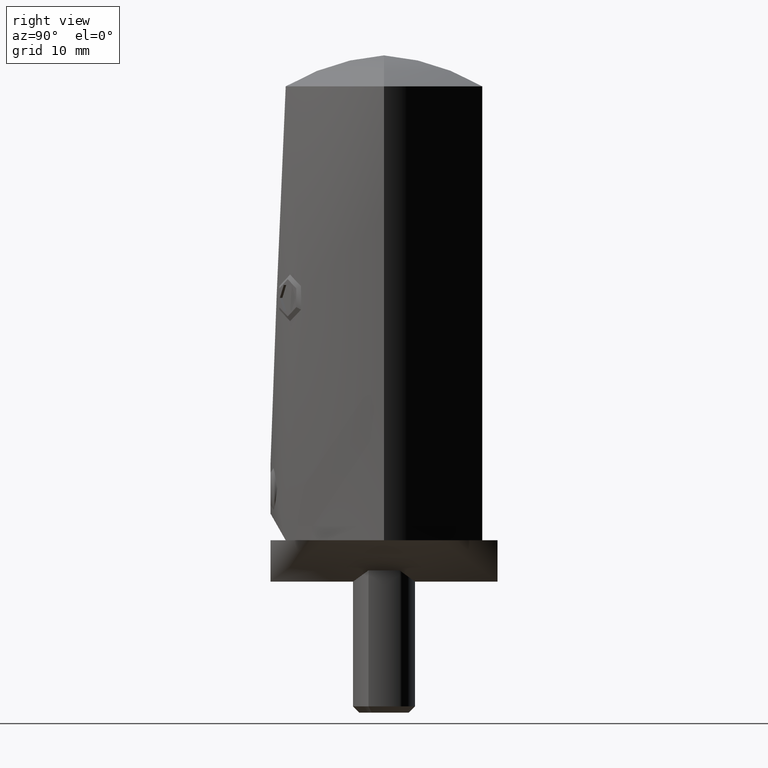
[diagram: clean part render]
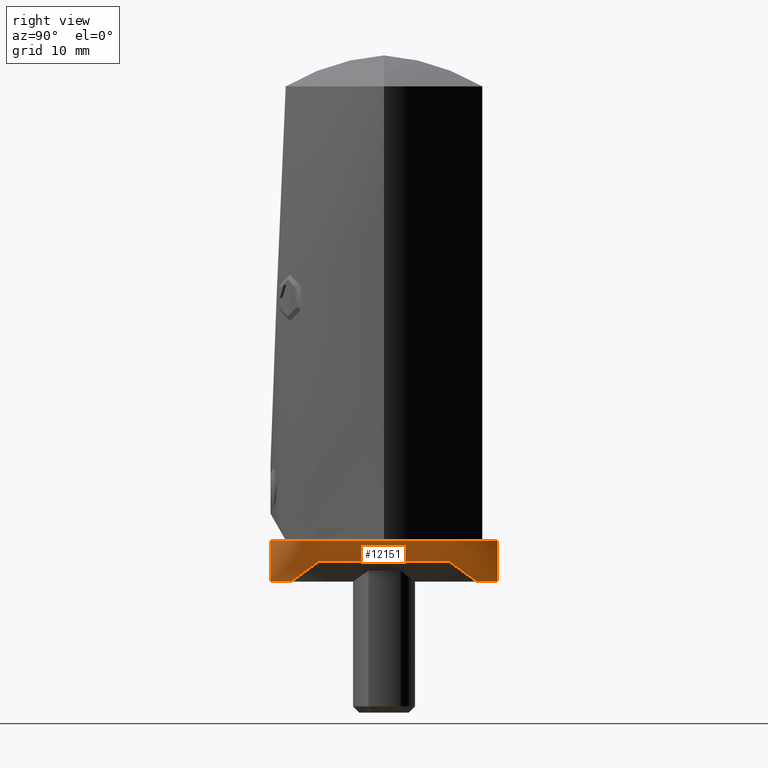
[diagram: same view with one face highlighted and labeled with its STEP entity id]
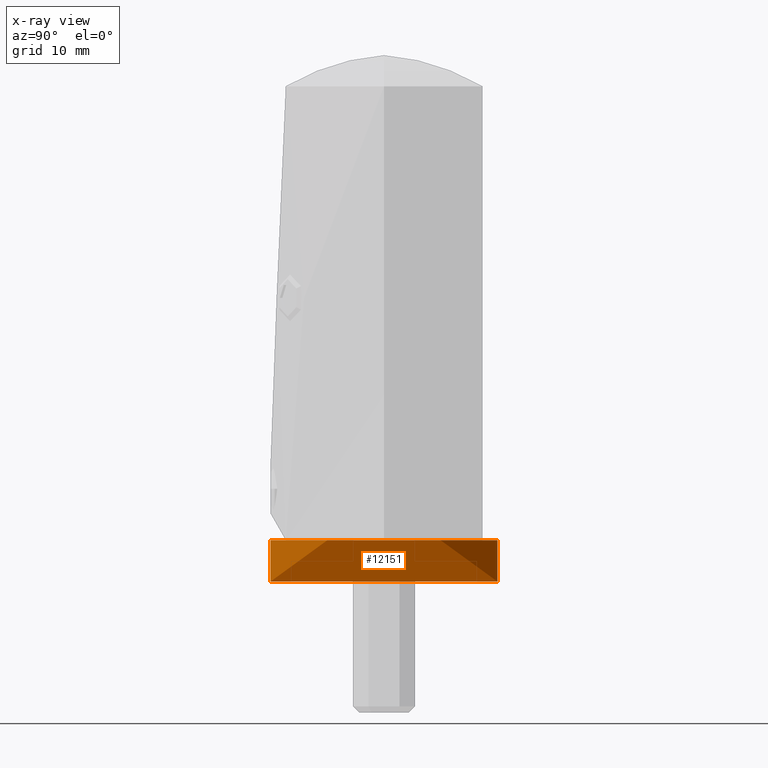
[diagram: x-ray of the same camera — body ghosted, the highlighted face saturated]
A machine part, right view. The second image highlights one B-rep face of the part: STEP entity #12151.
The next image is the same camera in x-ray: the body ghosted, the highlighted face saturated — about 0% of this face is hidden behind the body in this view.
In plain terms, the highlighted cylindrical surface (partial cylindrical patch) has radius 11 mm, axis along (0, 0, -1).
Its self-contained STEP definition (entity closure, byte-faithful):
#45 = AXIS2_PLACEMENT_3D ( 'NONE', #18418, #7513, #16544 ) ;
#507 = CARTESIAN_POINT ( 'NONE',  ( 0.000000000000000000, 11.00000000000000000, -3.469446951953614189E-15 ) ) ;
#513 = VECTOR ( 'NONE', #21849, 1000.000000000000000 ) ;
#676 = CARTESIAN_POINT ( 'NONE',  ( 2.552064494333429856, -10.70615899485356337, -0.1510597987303608503 ) ) ;
#733 = ORIENTED_EDGE ( 'NONE', *, *, #11582, .T. ) ;
#752 = CARTESIAN_POINT ( 'NONE',  ( 9.864297932310677197, 4.919862878017696950, -2.432080945133793914 ) ) ;
#835 = CARTESIAN_POINT ( 'NONE',  ( 8.270404237882667431, 7.261240364331859709, -1.678201803686915294 ) ) ;
#1369 = B_SPLINE_CURVE_WITH_KNOTS ( 'NONE', 3,
 ( #507, #16882, #4232, #11485, #13130, #22033, #2757, #4401, #18745, #4485, #4568, #16799, #9829, #11649, #835, #18517, #9529, #20236, #752, #13443, #2525, #13291, #18587, #6208, #16956, #6132, #2440, #20459, #16715, #6057, #8087, #9753, #2680, #20315, #9606, #22111, #17029, #20387, #18669, #15164, #7766, #9679, #11321, #11404, #2602, #8002, #676, #22266, #11568, #20540 ),
 .UNSPECIFIED., .F., .F.,
 ( 4, 2, 2, 2, 2, 2, 2, 2, 2, 2, 2, 2, 2, 2, 2, 2, 2, 2, 2, 2, 2, 2, 2, 2, 4 ),
 ( 0.03502517216169599018, 0.03721196855258311620, 0.03830536674802667574, 0.03939876494347024222, 0.04158556133435736130, 0.04267895952980092777, 0.04377235772524448731, 0.04486575592068804685, 0.04595915411613160639, 0.04814595050701871853, 0.04923934870246227807, 0.05033274689790583761, 0.05251954328879295669, 0.05361294148423651623, 0.05470633967968006883, 0.05579973787512362837, 0.05689313607056718791, 0.05907993246145431393, 0.06017333065689787347, 0.06126672885234142607, 0.06345352524322854515, 0.06564032163411565035, 0.06673371982955920989, 0.06782711802500276943, 0.07001391441588987463 ),
 .UNSPECIFIED. ) ;
#1452 = CARTESIAN_POINT ( 'NONE',  ( 1.347111479062088799E-15, -11.00000000000000178, 3.999999999999994671 ) ) ;
#1494 = LINE ( 'NONE', #1701, #14574 ) ;
#1701 = CARTESIAN_POINT ( 'NONE',  ( 0.000000000000000000, 11.00000000000000000, 1.999999999999999556 ) ) ;
#2030 = CARTESIAN_POINT ( 'NONE',  ( 0.000000000000000000, 11.00000000000000178, 3.999999999999998224 ) ) ;
#2440 = CARTESIAN_POINT ( 'NONE',  ( 10.98274293922297851, -0.7174293107113660639, -3.066573732303058630 ) ) ;
#2525 = CARTESIAN_POINT ( 'NONE',  ( 10.40232475824445579, 3.594992271804330120, -2.727129868824431203 ) ) ;
#2602 = CARTESIAN_POINT ( 'NONE',  ( 3.602820818996964380, -10.39958567651496324, -0.3054374273882594637 ) ) ;
#2680 = CARTESIAN_POINT ( 'NONE',  ( 10.28754891350618017, -3.911047893282803667, -2.662701681341379079 ) ) ;
#2757 = CARTESIAN_POINT ( 'NONE',  ( 3.929596504971303972, 10.28046273033147529, -0.3646191335785084475 ) ) ;
#2787 = AXIS2_PLACEMENT_3D ( 'NONE', #19562, #3260, #23072 ) ;
#3260 = DIRECTION ( 'NONE',  ( -0.000000000000000000, 1.224646799147353700E-16, -1.000000000000000000 ) ) ;
#3488 = DIRECTION ( 'NONE',  ( -0.000000000000000000, 1.224646799147353700E-16, -1.000000000000000000 ) ) ;
#4232 = CARTESIAN_POINT ( 'NONE',  ( 1.467299718637823158, 10.92589961751966854, -0.03871547189467094280 ) ) ;
#4401 = CARTESIAN_POINT ( 'NONE',  ( 4.925419289156148572, 9.861988409670592759, -0.5689665070091417531 ) ) ;
#4485 = CARTESIAN_POINT ( 'NONE',  ( 6.442175338900206327, 8.923348977481351696, -1.000140224583368376 ) ) ;
#4568 = CARTESIAN_POINT ( 'NONE',  ( 6.729267827708224736, 8.708754479614697175, -1.094261902260203367 ) ) ;
#4733 = EDGE_CURVE ( 'NONE', #8340, #15429, #1494, .T. ) ;
#5587 = VERTEX_POINT ( 'NONE', #1452 ) ;
#6057 = CARTESIAN_POINT ( 'NONE',  ( 10.71292069468791652, -2.522954243024979615, -2.905732086509019485 ) ) ;
#6132 = CARTESIAN_POINT ( 'NONE',  ( 11.00067371623885570, -0.3456549981569164154, -3.077495249088782359 ) ) ;
#6208 = CARTESIAN_POINT ( 'NONE',  ( 10.92471211156022193, 1.476027313982266831, -3.030827097976156015 ) ) ;
#6212 = VERTEX_POINT ( 'NONE', #15802 ) ;
#6954 = EDGE_CURVE ( 'NONE', #8340, #5587, #15910, .T. ) ;
#7513 = DIRECTION ( 'NONE',  ( -0.000000000000000000, 1.224646799147353700E-16, -1.000000000000000000 ) ) ;
#7766 = CARTESIAN_POINT ( 'NONE',  ( 6.748102684486553926, -8.716583714318458576, -1.093034215487775462 ) ) ;
#8002 = CARTESIAN_POINT ( 'NONE',  ( 2.909539390763706379, -10.61443736759360945, -0.1976752837172887356 ) ) ;
#8087 = CARTESIAN_POINT ( 'NONE',  ( 10.62402915502530476, -2.874267179972429975, -2.853748354570514678 ) ) ;
#8340 = VERTEX_POINT ( 'NONE', #2030 ) ;
#9529 = CARTESIAN_POINT ( 'NONE',  ( 8.933765440907340150, 6.427605682767928208, -1.973039072528823379 ) ) ;
#9606 = CARTESIAN_POINT ( 'NONE',  ( 9.532702728941721659, -5.534703615640196084, -2.259038555950334093 ) ) ;
#9679 = CARTESIAN_POINT ( 'NONE',  ( 5.557525793941373138, -9.519959481992170680, -0.7319549064988567499 ) ) ;
#9753 = CARTESIAN_POINT ( 'NONE',  ( 10.41174297898443157, -3.567494281461812022, -2.732445937162654381 ) ) ;
#9829 = CARTESIAN_POINT ( 'NONE',  ( 7.536272219175398135, 8.020506772223102487, -1.382934182049875727 ) ) ;
#11118 = EDGE_CURVE ( 'NONE', #15429, #6212, #1369, .T. ) ;
#11321 = CARTESIAN_POINT ( 'NONE',  ( 4.930220560771870097, -9.859271180693031766, -0.5702541942596116575 ) ) ;
#11404 = CARTESIAN_POINT ( 'NONE',  ( 3.940806586855185145, -10.27609454963675972, -0.3667713701925455760 ) ) ;
#11485 = CARTESIAN_POINT ( 'NONE',  ( 2.535894805954848064, 10.70986929249087716, -0.1491693662918061603 ) ) ;
#11568 = CARTESIAN_POINT ( 'NONE',  ( 0.7402852057931207375, -11.00000000000000355, 9.317362419797211285E-17 ) ) ;
#11582 = EDGE_CURVE ( 'NONE', #5587, #6212, #20881, .T. ) ;
#11631 = CARTESIAN_POINT ( 'NONE',  ( 0.000000000000000000, 11.00000000000000000, -3.469446951953614189E-15 ) ) ;
#11649 = CARTESIAN_POINT ( 'NONE',  ( 8.033687335736813040, 7.522220126825148512, -1.579312846230283229 ) ) ;
#12151 = ADVANCED_FACE ( 'NONE', ( #18907 ), #12230, .T. ) ;
#12230 = CYLINDRICAL_SURFACE ( 'NONE', #2787, 11.00000000000000000 ) ;
#13130 = CARTESIAN_POINT ( 'NONE',  ( 2.888607095253891810, 10.62023836085034567, -0.1947433341766091341 ) ) ;
#13239 = ORIENTED_EDGE ( 'NONE', *, *, #4733, .F. ) ;
#13291 = CARTESIAN_POINT ( 'NONE',  ( 10.61711103650346821, 2.899876385102410303, -2.849734484269164980 ) ) ;
#13443 = CARTESIAN_POINT ( 'NONE',  ( 10.27909791159250297, 3.932874550868092012, -2.658022328760500486 ) ) ;
#14574 = VECTOR ( 'NONE', #3488, 1000.000000000000000 ) ;
#14899 = CARTESIAN_POINT ( 'NONE',  ( 1.347111479062088405E-15, -11.00000000000000000, 1.999999999999997113 ) ) ;
#15164 = CARTESIAN_POINT ( 'NONE',  ( 7.292018243914411890, -8.265747716242641374, -1.286376107099085786 ) ) ;
#15429 = VERTEX_POINT ( 'NONE', #11631 ) ;
#15802 = CARTESIAN_POINT ( 'NONE',  ( 1.347111479062088602E-15, -11.00000000000000000, -3.469446951953614189E-15 ) ) ;
#15910 = CIRCLE ( 'NONE', #45, 11.00000000000000178 ) ;
#16171 = ORIENTED_EDGE ( 'NONE', *, *, #11118, .F. ) ;
#16544 = DIRECTION ( 'NONE',  ( 0.000000000000000000, 1.000000000000000000, 1.577021341797097067E-16 ) ) ;
#16715 = CARTESIAN_POINT ( 'NONE',  ( 10.85603726131801672, -1.810641572466851423, -2.990294805183332016 ) ) ;
#16799 = CARTESIAN_POINT ( 'NONE',  ( 7.275574818717098324, 8.257812127948154668, -1.285438468066033346 ) ) ;
#16882 = CARTESIAN_POINT ( 'NONE',  ( 0.7410559829012656197, 10.99999999999999822, -7.623296525288699970E-18 ) ) ;
#16956 = CARTESIAN_POINT ( 'NONE',  ( 10.99859349490227878, 0.7537502832437135147, -3.076232627687867094 ) ) ;
#17029 = CARTESIAN_POINT ( 'NONE',  ( 8.725234216480592053, -6.707913983110485034, -1.877197688189006231 ) ) ;
#18418 = CARTESIAN_POINT ( 'NONE',  ( 0.000000000000000000, -4.898587196589407898E-16, 3.999999999999996447 ) ) ;
#18517 = CARTESIAN_POINT ( 'NONE',  ( 8.719963951504306365, 6.714717162401944606, -1.874824198470386394 ) ) ;
#18587 = CARTESIAN_POINT ( 'NONE',  ( 10.70789862065493558, 2.544190434656818045, -2.902788414739169820 ) ) ;
#18669 = CARTESIAN_POINT ( 'NONE',  ( 8.038023672227113892, -7.517592985075362222, -1.581089171437418894 ) ) ;
#18745 = CARTESIAN_POINT ( 'NONE',  ( 5.552767705937057485, 9.522493953167325387, -0.7307400481009420634 ) ) ;
#18907 = FACE_OUTER_BOUND ( 'NONE', #20630, .T. ) ;
#19077 = ORIENTED_EDGE ( 'NONE', *, *, #6954, .T. ) ;
#19562 = CARTESIAN_POINT ( 'NONE',  ( 0.000000000000000000, -2.449293598294700991E-16, 1.999999999999998224 ) ) ;
#20236 = CARTESIAN_POINT ( 'NONE',  ( 9.528112198186326154, 5.542580356113598228, -2.256720353186260741 ) ) ;
#20315 = CARTESIAN_POINT ( 'NONE',  ( 9.870325263758303436, -4.908819845232764045, -2.435217944284064462 ) ) ;
#20387 = CARTESIAN_POINT ( 'NONE',  ( 8.274939801116792282, -7.256114209764482403, -1.680118530030333623 ) ) ;
#20459 = CARTESIAN_POINT ( 'NONE',  ( 10.91026507547973523, -1.449642462018545963, -3.022874081477544106 ) ) ;
#20540 = CARTESIAN_POINT ( 'NONE',  ( 1.347111479062088602E-15, -11.00000000000000000, -3.469446951953614189E-15 ) ) ;
#20630 = EDGE_LOOP ( 'NONE', ( #19077, #733, #16171, #13239 ) ) ;
#20881 = LINE ( 'NONE', #14899, #513 ) ;
#21849 = DIRECTION ( 'NONE',  ( -0.000000000000000000, 1.224646799147353700E-16, -1.000000000000000000 ) ) ;
#22033 = CARTESIAN_POINT ( 'NONE',  ( 3.587022875713402836, 10.40513242016348627, -0.3026765963442613061 ) ) ;
#22111 = CARTESIAN_POINT ( 'NONE',  ( 8.938929513497360091, -6.420426816852931040, -1.975441498214763003 ) ) ;
#22266 = CARTESIAN_POINT ( 'NONE',  ( 1.472410600950483817, -10.92572658670776242, -0.03881680667030881077 ) ) ;
#23072 = DIRECTION ( 'NONE',  ( 0.000000000000000000, 1.000000000000000000, 1.182766006347823109E-16 ) ) ;